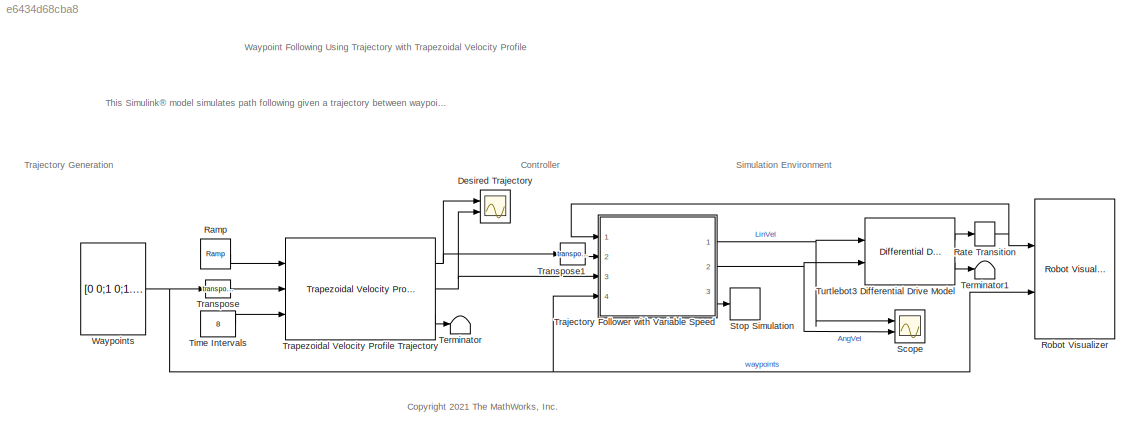
MODEL slx_e6434d68cba8
KIND model
CONFIG AbsTol = auto
CONFIG EnableMultiTasking = on
CONFIG FixedStep = 0.01
CONFIG MaxStep = auto
CONFIG MinStep = auto
CONFIG PreLoadFcn = load('turtleBotMazeMap.mat')
CONFIG RelTol = 1e-3
CONFIG SampleTimeConstraint = Unconstrained
CONFIG SolverName = VariableStepAuto
CONFIG StartTime = 0.0
CONFIG StopTime = inf
BLOCK [Scope] Desired Trajectory
  Floating = off
  NameLocation = top
  NumInputPorts = 2
  Ports = [2]
  ScopeSpecificationString = Simulink.scopes.TimeScopeBlockCfg('CurrentConfiguration', extmgr.ConfigurationSet(extmgr.Configuration('Core','General UI',true),extmgr.Configuration('Core','Source UI',true),extmgr.Configuration('Sources','WiredSimulink',true,'DataLoggingLimitDataPoints',true,'DataLoggingSaveFormat','Array','DataLoggingDecimation','1','DataLoggingVariableName','ScopeData1'),extmgr.Configuration('Visuals','Time Do...<+2397ch>
BLOCK [Reference] Ramp  REF=simulink/Sources/Ramp
  Ports = [0, 1]
  SourceBlock = simulink/Sources/Ramp
  SourceProductBaseCode = SL
  SourceType = Ramp
BLOCK [RateTransition] Rate Transition
  OutPortSampleTime = 0.02
BLOCK [Reference] Robot Visualizer  REF=mobileRoboticsLib/Environments/Robot Visualizer
  Ports = [2]
  Priority = 99
  SourceBlock = mobileRoboticsLib/Environments/Robot Visualizer
  SourceProductName = Mobile Robotics Simulation Toolbox
  SourceType = Visualizer2D
BLOCK [Scope] Scope
  Floating = off
  NumInputPorts = 2
  Ports = [2]
  ScopeSpecificationString = Simulink.scopes.TimeScopeBlockCfg('CurrentConfiguration', extmgr.ConfigurationSet(extmgr.Configuration('Core','General UI',true),extmgr.Configuration('Core','Source UI',true),extmgr.Configuration('Sources','WiredSimulink',true),extmgr.Configuration('Visuals','Time Domain',true,'SerializedDisplays',{struct('MinYLimReal','-0.0325','MaxYLimReal','0.2925','YLabelReal','','MinYLimMag','0.00000','MaxYLi...<+2027ch>
BLOCK [Stop] Stop Simulation
BLOCK [Terminator] Terminator
BLOCK [Terminator] Terminator1
BLOCK [Constant] Time Intervals
  Value = 8
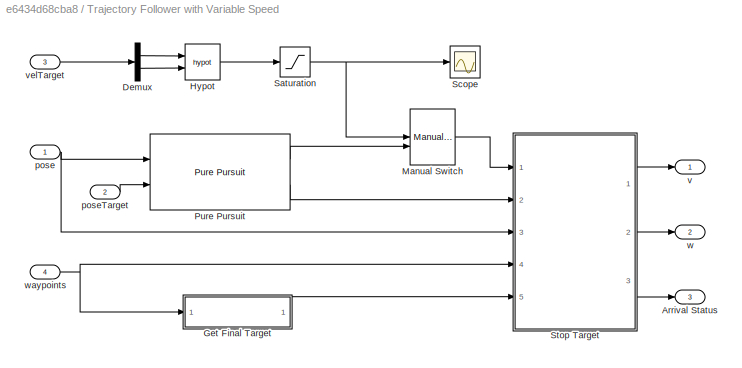
BLOCK [SubSystem] Trajectory Follower with Variable Speed
  Ports = [4, 3]
  RequestExecContextInheritance = off
BLOCK [Outport] Trajectory Follower with Variable Speed/Arrival Status
  Port = 3
  VectorParamsAs1DForOutWhenUnconnected = off
BLOCK [Demux] Trajectory Follower with Variable Speed/Demux
  Outputs = 2
  Ports = [1, 2]
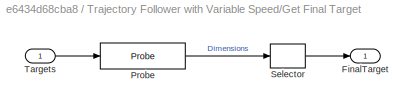
BLOCK [SubSystem] Trajectory Follower with Variable Speed/Get Final Target
  Ports = [1, 1]
  RequestExecContextInheritance = off
BLOCK [Outport] Trajectory Follower with Variable Speed/Get Final Target/FinalTarget
BLOCK [Probe] Trajectory Follower with Variable Speed/Get Final Target/Probe
  Ports = [1, 1]
  ProbeComplexSignal = off
  ProbeSampleTime = off
  ProbeSignalDimensions = on
  ProbeWidth = off
BLOCK [Selector] Trajectory Follower with Variable Speed/Get Final Target/Selector
  IndexOptions = Index vector (dialog)
  Indices = 1
  InputPortWidth = 2
  OutputSizes = 1
  Ports = [1, 1]
BLOCK [Inport] Trajectory Follower with Variable Speed/Get Final Target/Targets
BLOCK [Math] Trajectory Follower with Variable Speed/Hypot
  Operator = hypot
  Ports = [2, 1]
BLOCK [ManualSwitch] Trajectory Follower with Variable Speed/Manual Switch
BLOCK [Reference] Trajectory Follower with Variable Speed/Pure Pursuit  REF=robotalgslib/Pure Pursuit
  Ports = [2, 2]
  SourceBlock = robotalgslib/Pure Pursuit
  SourceProductBaseCode = NV,RO
  SourceType = nav.slalgs.internal.PurePursuit
BLOCK [Saturate] Trajectory Follower with Variable Speed/Saturation
  LowerLimit = 0
  UpperLimit = 0.26
BLOCK [Scope] Trajectory Follower with Variable Speed/Scope
  Floating = off
  NumInputPorts = 1
  Ports = [1]
  ScopeSpecificationString = Simulink.scopes.TimeScopeBlockCfg('CurrentConfiguration', extmgr.ConfigurationSet(extmgr.Configuration('Core','General UI',true),extmgr.Configuration('Core','Source UI',true),extmgr.Configuration('Sources','WiredSimulink',true,'DataLoggingLimitDataPoints',true,'DataLoggingSaveFormat','Array','DataLoggingDecimation','1','DataLoggingVariableName','ScopeData3'),extmgr.Configuration('Visuals','Time Do...<+1696ch>
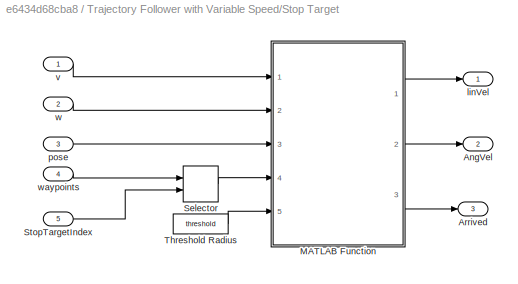
BLOCK [SubSystem] Trajectory Follower with Variable Speed/Stop Target
  Ports = [5, 3]
  RequestExecContextInheritance = off
BLOCK [Outport] Trajectory Follower with Variable Speed/Stop Target/AngVel
  Port = 2
BLOCK [Outport] Trajectory Follower with Variable Speed/Stop Target/Arrived
  Port = 3
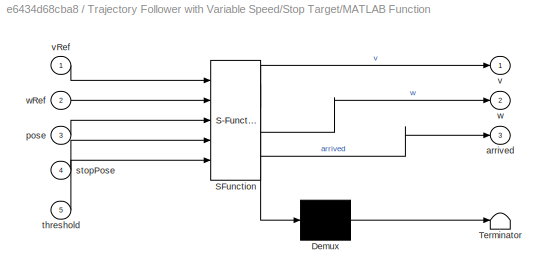
BLOCK [SubSystem] Trajectory Follower with Variable Speed/Stop Target/MATLAB Function
  ErrorFcn = Stateflow.Translate.translate
  PermitHierarchicalResolution = ExplicitOnly
  Ports = [5, 3]
  RequestExecContextInheritance = off
  SFBlockType = MATLAB Function
  TreatAsAtomicUnit = on
BLOCK [Demux] Trajectory Follower with Variable Speed/Stop Target/MATLAB Function/ Demux 
  Outputs = 1
  Ports = [1, 1]
BLOCK [S-Function] Trajectory Follower with Variable Speed/Stop Target/MATLAB Function/ SFunction 
  EnableBusSupport = on
  FunctionName = sf_sfun
  PortCounts = [5 4]
  Ports = [5, 4]
  SFcnIsStateOwnerBlock = off
  SFunctionDeploymentMode = off
  Tag = Stateflow S-Function 2
BLOCK [Terminator] Trajectory Follower with Variable Speed/Stop Target/MATLAB Function/ Terminator 
BLOCK [Outport] Trajectory Follower with Variable Speed/Stop Target/MATLAB Function/arrived
  Port = 3
BLOCK [Inport] Trajectory Follower with Variable Speed/Stop Target/MATLAB Function/pose
  Port = 3
BLOCK [Inport] Trajectory Follower with Variable Speed/Stop Target/MATLAB Function/stopPose
  Port = 4
BLOCK [Inport] Trajectory Follower with Variable Speed/Stop Target/MATLAB Function/threshold
  Port = 5
BLOCK [Outport] Trajectory Follower with Variable Speed/Stop Target/MATLAB Function/v
BLOCK [Inport] Trajectory Follower with Variable Speed/Stop Target/MATLAB Function/vRef
BLOCK [Outport] Trajectory Follower with Variable Speed/Stop Target/MATLAB Function/w
  Port = 2
BLOCK [Inport] Trajectory Follower with Variable Speed/Stop Target/MATLAB Function/wRef
  Port = 2
BLOCK [Selector] Trajectory Follower with Variable Speed/Stop Target/Selector
  IndexOptions = Index vector (port),Index vector (dialog)
  Indices = [1 3],[1 2]
  InputPortWidth = 3
  NumberOfDimensions = 2
  OutputSizes = 1,1
  Ports = [2, 1]
BLOCK [Inport] Trajectory Follower with Variable Speed/Stop Target/StopTargetIndex
  Port = 5
BLOCK [Constant] Trajectory Follower with Variable Speed/Stop Target/Threshold Radius
  Value = threshold
BLOCK [Outport] Trajectory Follower with Variable Speed/Stop Target/linVel
BLOCK [Inport] Trajectory Follower with Variable Speed/Stop Target/pose
  Port = 3
BLOCK [Inport] Trajectory Follower with Variable Speed/Stop Target/v
BLOCK [Inport] Trajectory Follower with Variable Speed/Stop Target/w
  Port = 2
BLOCK [Inport] Trajectory Follower with Variable Speed/Stop Target/waypoints
  Port = 4
BLOCK [Inport] Trajectory Follower with Variable Speed/pose
BLOCK [Inport] Trajectory Follower with Variable Speed/poseTarget
  Port = 2
BLOCK [Outport] Trajectory Follower with Variable Speed/v
  VectorParamsAs1DForOutWhenUnconnected = off
BLOCK [Inport] Trajectory Follower with Variable Speed/velTarget
  Port = 3
BLOCK [Outport] Trajectory Follower with Variable Speed/w
  Port = 2
  VectorParamsAs1DForOutWhenUnconnected = off
BLOCK [Inport] Trajectory Follower with Variable Speed/waypoints
  Port = 4
BLOCK [Math] Transpose
  Operator = transpose
  Ports = [1, 1]
BLOCK [Math] Transpose1
  Operator = transpose
  Ports = [1, 1]
BLOCK [Reference] Trapezoidal Velocity Profile Trajectory  REF=robotcorelib/Trapezoidal Velocity Profile Trajectory
  Ports = [3, 3]
  SourceBlock = robotcorelib/Trapezoidal Velocity Profile Trajectory
  SourceProductBaseCode = NV,RO,RR,UV
  SourceType = robotics.slcore.internal.block.TrapVelTrajSys
BLOCK [Reference] Turtlebot3 Differential Drive Model  REF=robotmobilelib/Differential Drive Kinematic Model
  Ports = [2, 2]
  SourceBlock = robotmobilelib/Differential Drive Kinematic Model
  SourceProductBaseCode = RO
  SourceType = Differential Drive Kinematic Model
BLOCK [Constant] Waypoints
  Value = [0 0;1 0;1.2 1.3;2.5 1.3;3 2.8;4 4]
ANNOTATION (root): Waypoint Following Using Trajectory with Trapezoidal Velocity Profile
ANNOTATION (root): <copyright redacted>
ANNOTATION (root): This Simulink® model simulates path following given a trajectory between waypoints generated with a trapezoidal velocity profile. A modified version of a pure pursuit controller accounts for variability in linear velocity and arrival status, and the kinematics of the Turtlebot 3 are modeled using a differential drive motion model.
ANNOTATION (root): Controller
ANNOTATION (root): Simulation Environment
ANNOTATION (root): Trajectory Generation
LINE Ramp:1 -> Trapezoidal Velocity Profile Trajectory:1
NET Rate Transition:1 -> Robot Visualizer:1, Trajectory Follower with Variable Speed:1
LINE Time Intervals:1 -> Trapezoidal Velocity Profile Trajectory:3
LINE Trajectory Follower with Variable Speed/Demux:1 -> Trajectory Follower with Variable Speed/Hypot:1
LINE Trajectory Follower with Variable Speed/Demux:2 -> Trajectory Follower with Variable Speed/Hypot:2
LINE Trajectory Follower with Variable Speed/Get Final Target/Probe:1 -> Trajectory Follower with Variable Speed/Get Final Target/Selector:1
LINE Trajectory Follower with Variable Speed/Get Final Target/Selector:1 -> Trajectory Follower with Variable Speed/Get Final Target/FinalTarget:1
LINE Trajectory Follower with Variable Speed/Get Final Target/Targets:1 -> Trajectory Follower with Variable Speed/Get Final Target/Probe:1
LINE Trajectory Follower with Variable Speed/Get Final Target:1 -> Trajectory Follower with Variable Speed/Stop Target:5
LINE Trajectory Follower with Variable Speed/Hypot:1 -> Trajectory Follower with Variable Speed/Saturation:1
LINE Trajectory Follower with Variable Speed/Manual Switch:1 -> Trajectory Follower with Variable Speed/Stop Target:1
LINE Trajectory Follower with Variable Speed/Pure Pursuit:1 -> Trajectory Follower with Variable Speed/Manual Switch:2
LINE Trajectory Follower with Variable Speed/Pure Pursuit:2 -> Trajectory Follower with Variable Speed/Stop Target:2
NET Trajectory Follower with Variable Speed/Saturation:1 -> Trajectory Follower with Variable Speed/Manual Switch:1, Trajectory Follower with Variable Speed/Scope:1
LINE Trajectory Follower with Variable Speed/Stop Target/MATLAB Function:1 -> Trajectory Follower with Variable Speed/Stop Target/linVel:1
LINE Trajectory Follower with Variable Speed/Stop Target/MATLAB Function:2 -> Trajectory Follower with Variable Speed/Stop Target/AngVel:1
LINE Trajectory Follower with Variable Speed/Stop Target/MATLAB Function:3 -> Trajectory Follower with Variable Speed/Stop Target/Arrived:1
LINE Trajectory Follower with Variable Speed/Stop Target/Selector:1 -> Trajectory Follower with Variable Speed/Stop Target/MATLAB Function:4
LINE Trajectory Follower with Variable Speed/Stop Target/StopTargetIndex:1 -> Trajectory Follower with Variable Speed/Stop Target/Selector:2
LINE Trajectory Follower with Variable Speed/Stop Target/Threshold Radius:1 -> Trajectory Follower with Variable Speed/Stop Target/MATLAB Function:5
LINE Trajectory Follower with Variable Speed/Stop Target/pose:1 -> Trajectory Follower with Variable Speed/Stop Target/MATLAB Function:3
LINE Trajectory Follower with Variable Speed/Stop Target/v:1 -> Trajectory Follower with Variable Speed/Stop Target/MATLAB Function:1
LINE Trajectory Follower with Variable Speed/Stop Target/w:1 -> Trajectory Follower with Variable Speed/Stop Target/MATLAB Function:2
LINE Trajectory Follower with Variable Speed/Stop Target/waypoints:1 -> Trajectory Follower with Variable Speed/Stop Target/Selector:1
LINE Trajectory Follower with Variable Speed/Stop Target:1 -> Trajectory Follower with Variable Speed/v:1
LINE Trajectory Follower with Variable Speed/Stop Target:2 -> Trajectory Follower with Variable Speed/w:1
LINE Trajectory Follower with Variable Speed/Stop Target:3 -> Trajectory Follower with Variable Speed/Arrival Status:1
NET Trajectory Follower with Variable Speed/pose:1 -> Trajectory Follower with Variable Speed/Pure Pursuit:1, Trajectory Follower with Variable Speed/Stop Target:3
LINE Trajectory Follower with Variable Speed/poseTarget:1 -> Trajectory Follower with Variable Speed/Pure Pursuit:2
LINE Trajectory Follower with Variable Speed/velTarget:1 -> Trajectory Follower with Variable Speed/Demux:1
NET Trajectory Follower with Variable Speed/waypoints:1 -> Trajectory Follower with Variable Speed/Get Final Target:1, Trajectory Follower with Variable Speed/Stop Target:4
NET Trajectory Follower with Variable Speed:1 -> Scope:1, Turtlebot3 Differential Drive Model:1
NET Trajectory Follower with Variable Speed:2 -> Scope:2, Turtlebot3 Differential Drive Model:2
LINE Trajectory Follower with Variable Speed:3 -> Stop Simulation:1
LINE Transpose1:1 -> Trajectory Follower with Variable Speed:2
LINE Transpose:1 -> Trapezoidal Velocity Profile Trajectory:2
NET Trapezoidal Velocity Profile Trajectory:1 -> Desired Trajectory:1, Transpose1:1
NET Trapezoidal Velocity Profile Trajectory:2 -> Desired Trajectory:2, Trajectory Follower with Variable Speed:3
LINE Trapezoidal Velocity Profile Trajectory:3 -> Terminator:1
LINE Turtlebot3 Differential Drive Model:1 -> Rate Transition:1
LINE Turtlebot3 Differential Drive Model:2 -> Terminator1:1
NET Waypoints:1 -> Robot Visualizer:2, Trajectory Follower with Variable Speed:4, Transpose:1
note: NET lines group one-source signal fan-out (src -> all destinations, sorted); 1:1 wires keep LINE
CHART Trajectory Follower with Variable Speed/Stop Target/MATLAB Function states=1 transitions=1
  STATE_LABEL 'eML_blk_kernel()'
  STATE_LABEL 'SCRIPT:\nfunction [v, w, arrived] = arrivalThreshold(vRef, wRef, pose, stopPose, threshold)\n\neucDist = sqrt((stopPose(1)-pose(1))^2 + (stopPose(2)-pose(2))^2);\n\nif eucDist > threshold\n    v = vRef;\n    w = wRef;\n    arrived = 0;\nelse\n    v = 0;\n    w = 0;\n    arrived = 1;\nend'
CHART  states=0 transitions=0
